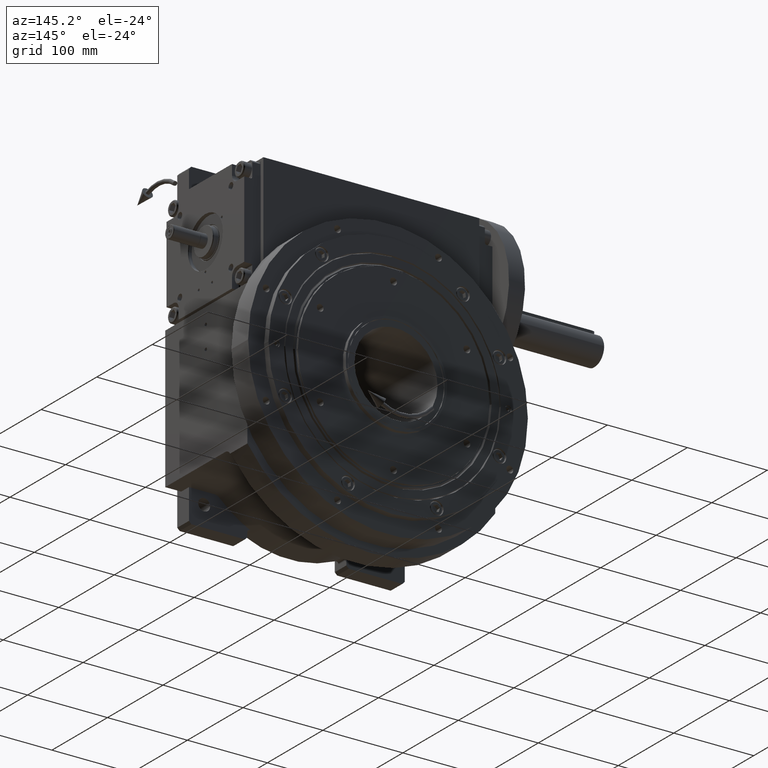
[diagram: clean part render]
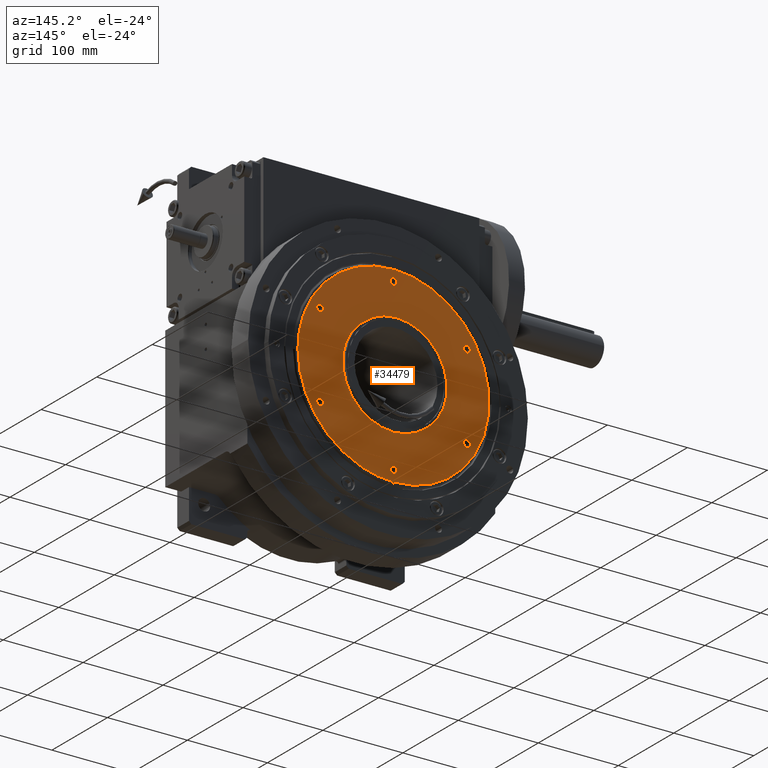
[diagram: same view with one face highlighted and labeled with its STEP entity id]
A machine part, auxiliary view. The second image highlights one B-rep face of the part: STEP entity #34479.
In plain terms, the highlighted planar face has unit normal (-0, -1, -0).
Its self-contained STEP definition (entity closure, byte-faithful):
#169 = CARTESIAN_POINT ( 'NONE',  ( 59.91550615225101950, 132.4999999999978968, -103.8049390302765858 ) ) ;
#350 = AXIS2_PLACEMENT_3D ( 'NONE', #35271, #22970, #34556 ) ;
#447 = B_SPLINE_CURVE_WITH_KNOTS ( 'NONE', 3,
 ( #26441, #48597, #32231, #59854, #4971, #70798, #26089, #37656, #43133, #15863, #27176, #60212, #65328, #15516, #54403, #4598, #26803, #9338, #48960, #32591, #48242, #71170, #70427, #43495, #65678, #38018, #10416, #49336, #42401, #14783, #15145, #54764, #71520, #43850, #20607, #66042, #42764, #21698, #64577, #14662, #19767, #63392, #30696, #41553, #3049, #41199, #36465, #64821 ),
 .UNSPECIFIED., .F., .F.,
 ( 4, 1, 1, 1, 2, 2, 2, 2, 2, 2, 2, 2, 2, 2, 2, 2, 2, 2, 2, 2, 2, 1, 1, 1, 2, 2, 4 ),
 ( 0.000000000000000000, 0.03124999999999977102, 0.04687499999999966693, 0.05468749999999961142, 0.05859374999999960448, 0.06249999999999959754, 0.09374999999999958367, 0.1249999999999995837, 0.1874999999999995559, 0.2499999999999995559, 0.3124999999999995559, 0.3749999999999995004, 0.4374999999999995004, 0.4999999999999995559, 0.5624999999999995559, 0.6249999999999995559, 0.6874999999999995559, 0.7499999999999995559, 0.8124999999999995559, 0.8437499999999996669, 0.8749999999999997780, 0.9062499999999998890, 0.9218749999999998890, 0.9296875000000000000, 0.9335937499999998890, 0.9374999999999998890, 1.000000000000000000 ),
 .UNSPECIFIED. ) ;
#569 = AXIS2_PLACEMENT_3D ( 'NONE', #25787, #35575, #42465 ) ;
#805 = VERTEX_POINT ( 'NONE', #39763 ) ;
#886 = ORIENTED_EDGE ( 'NONE', *, *, #30266, .T. ) ;
#943 = DIRECTION ( 'NONE',  ( 1.000000000000000000, 0.000000000000000000, 0.000000000000000000 ) ) ;
#3049 = CARTESIAN_POINT ( 'NONE',  ( 117.2049829753475905, 132.4999999999978684, 23.80735014851481424 ) ) ;
#3643 = FACE_BOUND ( 'NONE', #65547, .T. ) ;
#4004 = CARTESIAN_POINT ( 'NONE',  ( 2.434822665450165748E-14, 132.4999999999978968, -2.365041971707525628E-28 ) ) ;
#4069 = EDGE_CURVE ( 'NONE', #20922, #70827, #16515, .T. ) ;
#4193 = CARTESIAN_POINT ( 'NONE',  ( -38.51263040311844321, 132.4999999999978968, -113.4995549987769863 ) ) ;
#4598 = CARTESIAN_POINT ( 'NONE',  ( -90.12128647560763284, 132.4999999999979252, 79.01549921371366736 ) ) ;
#4926 = EDGE_LOOP ( 'NONE', ( #56709, #7550 ) ) ;
#4971 = CARTESIAN_POINT ( 'NONE',  ( -117.9267825953811979, 132.4999999999979252, 19.96307623908903750 ) ) ;
#5146 = EDGE_CURVE ( 'NONE', #19135, #29369, #64296, .T. ) ;
#5282 = CARTESIAN_POINT ( 'NONE',  ( -7.853206610606529026, 132.4999999999978968, -119.5980023859287087 ) ) ;
#5544 = EDGE_CURVE ( 'NONE', #27278, #805, #65766, .T. ) ;
#5627 = CARTESIAN_POINT ( 'NONE',  ( 79.01556773991651994, 132.4999999999978684, -90.12188140824113702 ) ) ;
#6256 = CIRCLE ( 'NONE', #28336, 63.49999999999945999 ) ;
#7206 = AXIS2_PLACEMENT_3D ( 'NONE', #48155, #20173, #37201 ) ;
#7259 = DIRECTION ( 'NONE',  ( 9.367723249499594012E-31, 1.000000000000000000, -1.879707625722509368E-30 ) ) ;
#7296 = EDGE_LOOP ( 'NONE', ( #71814, #41411 ) ) ;
#7550 = ORIENTED_EDGE ( 'NONE', *, *, #61004, .F. ) ;
#8254 = CIRCLE ( 'NONE', #38445, 4.249999999999961808 ) ;
#8643 = EDGE_CURVE ( 'NONE', #66032, #69282, #6256, .T. ) ;
#9080 = FACE_OUTER_BOUND ( 'NONE', #34158, .T. ) ;
#9219 = CARTESIAN_POINT ( 'NONE',  ( 57.24999999999921130, 132.4999999999978968, -91.79869280114944274 ) ) ;
#9338 = CARTESIAN_POINT ( 'NONE',  ( -72.97471123967686424, 132.4999999999978968, 95.07930562690665965 ) ) ;
#9368 = VERTEX_POINT ( 'NONE', #32492 ) ;
#9431 = ORIENTED_EDGE ( 'NONE', *, *, #63561, .T. ) ;
#9503 = CIRCLE ( 'NONE', #29317, 4.249999999999961808 ) ;
#9653 = CARTESIAN_POINT ( 'NONE',  ( -115.5835919734901012, 132.4999999999979252, -30.97810130117398941 ) ) ;
#10001 = CARTESIAN_POINT ( 'NONE',  ( -113.3149193024140402, 132.4999999999979252, -38.45822016484417816 ) ) ;
#10322 = ORIENTED_EDGE ( 'NONE', *, *, #71404, .F. ) ;
#10416 = CARTESIAN_POINT ( 'NONE',  ( 31.03403195677320880, 132.4999999999978684, 115.7682033528588192 ) ) ;
#10783 = AXIS2_PLACEMENT_3D ( 'NONE', #4004, #21458, #15250 ) ;
#11440 = CARTESIAN_POINT ( 'NONE',  ( 116.5896179971828275, 132.4999999999978684, -26.68677847494578614 ) ) ;
#11652 = CARTESIAN_POINT ( 'NONE',  ( 48.74999999999921130, 132.4999999999989484, 91.79869280114944274 ) ) ;
#11809 = CARTESIAN_POINT ( 'NONE',  ( 119.5931704195495939, 132.4999999999978684, -7.873779861737290275 ) ) ;
#12018 = DIRECTION ( 'NONE',  ( 1.000000000000000000, 0.000000000000000000, 0.000000000000000000 ) ) ;
#13178 = DIRECTION ( 'NONE',  ( 1.000000000000000000, 0.000000000000000000, 0.000000000000000000 ) ) ;
#13804 = ORIENTED_EDGE ( 'NONE', *, *, #17070, .F. ) ;
#14662 = CARTESIAN_POINT ( 'NONE',  ( 113.9740628083656873, 132.4999999999978684, 36.61660152332591167 ) ) ;
#14783 = CARTESIAN_POINT ( 'NONE',  ( 59.91608236990400371, 132.4999999999978968, 103.8044663400190757 ) ) ;
#15145 = CARTESIAN_POINT ( 'NONE',  ( 72.97465361904535541, 132.4999999999979252, 95.07943571753334311 ) ) ;
#15250 = DIRECTION ( 'NONE',  ( -1.000000000000000000, 1.836909530733552329E-16, 5.679798517591333204E-29 ) ) ;
#15309 = CARTESIAN_POINT ( 'NONE',  ( -48.74999999999973710, 132.4999999999989484, 91.79869280114944274 ) ) ;
#15408 = CARTESIAN_POINT ( 'NONE',  ( -110.2499999999989484, 132.4999999999978968, 3.871450606257303192E-15 ) ) ;
#15516 = CARTESIAN_POINT ( 'NONE',  ( -103.8047769619190603, 132.4999999999978968, 59.91610311598750371 ) ) ;
#15818 = CARTESIAN_POINT ( 'NONE',  ( -119.3066290682683643, 132.4999999999979252, -9.805815781586584734 ) ) ;
#15863 = CARTESIAN_POINT ( 'NONE',  ( -115.5837651079891231, 132.4999999999978968, 30.97752406750614895 ) ) ;
#16130 = EDGE_CURVE ( 'NONE', #20719, #59614, #64030, .T. ) ;
#16184 = CARTESIAN_POINT ( 'NONE',  ( -117.9268274798880327, 132.4999999999978968, -19.96321246641599956 ) ) ;
#16260 = CARTESIAN_POINT ( 'NONE',  ( -4.611821888984087218E-10, 132.4999999999965610, -119.5980143915149938 ) ) ;
#16515 = CIRCLE ( 'NONE', #32754, 4.249999999999961808 ) ;
#17070 = EDGE_CURVE ( 'NONE', #32320, #69373, #22408, .T. ) ;
#17309 = CARTESIAN_POINT ( 'NONE',  ( 52.99999999999920419, 132.4999999999989484, 91.79869280114944274 ) ) ;
#17386 = DIRECTION ( 'NONE',  ( -1.000000000000000000, 0.000000000000000000, 0.000000000000000000 ) ) ;
#17611 = CARTESIAN_POINT ( 'NONE',  ( 111.9967488491349172, 132.4999999999978400, -42.14107272694558759 ) ) ;
#17970 = CARTESIAN_POINT ( 'NONE',  ( 115.7983430623779526, 132.4999999999979252, -30.02127105599840817 ) ) ;
#18758 = CARTESIAN_POINT ( 'NONE',  ( -119.5980721650019376, 132.4999989161603082, -1.767335048674100720E-07 ) ) ;
#19135 = VERTEX_POINT ( 'NONE', #9219 ) ;
#19167 = CARTESIAN_POINT ( 'NONE',  ( 2.842170943040403268E-14, 132.4999999999978968, -2.357338251929976684E-28 ) ) ;
#19515 = B_SPLINE_CURVE_WITH_KNOTS ( 'NONE', 3,
 ( #22372, #11809, #61231, #27819, #44531, #51411, #11440, #17970, #40108, #17611, #39395, #45948, #34673, #23799, #56161, #66708, #5627, #56865, #169, #34322, #44883, #49980, #68134, #39030, #33605 ),
 .UNSPECIFIED., .F., .F.,
 ( 4, 2, 2, 1, 1, 1, 2, 2, 2, 2, 2, 2, 2, 4 ),
 ( 0.000000000000000000, 0.06249999705023520646, 0.06640624686587490166, 0.07031249668151458299, 0.07812499631279400114, 0.09374999557535286521, 0.1249999941004705240, 0.1562499926255881688, 0.1874999911507058137, 0.2499999882009411034, 0.3124999852511763376, 0.3749999823014115163, 0.4374999793516468061, 0.4999999764018819848 ),
 .UNSPECIFIED. ) ;
#19767 = CARTESIAN_POINT ( 'NONE',  ( 115.7981953049884822, 132.4999999999978400, 30.02177549642351551 ) ) ;
#19865 = CARTESIAN_POINT ( 'NONE',  ( -105.9999999999989484, 132.4999999999978968, -1.340062055304638707E-26 ) ) ;
#20029 = CARTESIAN_POINT ( 'NONE',  ( 105.9999999999989484, 132.4999999999989484, 1.499837203491003793E-26 ) ) ;
#20173 = DIRECTION ( 'NONE',  ( 9.367723249499594012E-31, 1.000000000000000000, -1.879707625722509368E-30 ) ) ;
#20336 = DIRECTION ( 'NONE',  ( 9.367723249499594012E-31, 1.000000000000000000, -1.879707625722509368E-30 ) ) ;
#20364 = FACE_BOUND ( 'NONE', #29624, .T. ) ;
#20560 = CARTESIAN_POINT ( 'NONE',  ( -15.62997630948720662, 132.4999999999978684, -118.8320161994700612 ) ) ;
#20607 = CARTESIAN_POINT ( 'NONE',  ( 101.6233064208454948, 132.4999999999978400, 63.18088954161913051 ) ) ;
#20719 = VERTEX_POINT ( 'NONE', #21334 ) ;
#20922 = VERTEX_POINT ( 'NONE', #69883 ) ;
#21223 = ORIENTED_EDGE ( 'NONE', *, *, #32151, .F. ) ;
#21334 = CARTESIAN_POINT ( 'NONE',  ( -101.7499999999989342, 132.4999999999978968, 4.327085356974898997E-15 ) ) ;
#21458 = DIRECTION ( 'NONE',  ( -1.836909530733552329E-16, -1.000000000000000000, 1.880467465270781052E-30 ) ) ;
#21698 = CARTESIAN_POINT ( 'NONE',  ( 108.9921631677102596, 132.4999999999978115, 49.39426878967106660 ) ) ;
#21909 = AXIS2_PLACEMENT_3D ( 'NONE', #32752, #60378, #33831 ) ;
#22021 = CARTESIAN_POINT ( 'NONE',  ( -117.4883090029722723, 132.4999999999978968, -22.36743131779856597 ) ) ;
#22372 = CARTESIAN_POINT ( 'NONE',  ( 119.5980721650007297, 132.4999989161609335, 1.767335070585145824E-07 ) ) ;
#22408 = CIRCLE ( 'NONE', #28166, 4.249999999999961808 ) ;
#22847 = CARTESIAN_POINT ( 'NONE',  ( -52.99999999999973710, 132.4999999999978968, -91.79869280114944274 ) ) ;
#22970 = DIRECTION ( 'NONE',  ( 9.367723249499594012E-31, 1.000000000000000000, -1.879707625722509368E-30 ) ) ;
#23329 = VERTEX_POINT ( 'NONE', #16260 ) ;
#23503 = VERTEX_POINT ( 'NONE', #18758 ) ;
#23799 = CARTESIAN_POINT ( 'NONE',  ( 101.6234431269164276, 132.4999999999978400, -63.18064476751921177 ) ) ;
#25145 = CARTESIAN_POINT ( 'NONE',  ( -52.99999999999973710, 132.4999999999989484, 91.79869280114944274 ) ) ;
#25787 = CARTESIAN_POINT ( 'NONE',  ( 52.99999999999920419, 132.4999999999978968, -91.79869280114944274 ) ) ;
#25804 = DIRECTION ( 'NONE',  ( 1.000000000000000000, 0.000000000000000000, -2.089831575765579837E-16 ) ) ;
#25808 = CIRCLE ( 'NONE', #7206, 4.249999999999961808 ) ;
#26044 = CARTESIAN_POINT ( 'NONE',  ( -116.5339786852160415, 132.4999999999978684, -27.18121637581603878 ) ) ;
#26089 = CARTESIAN_POINT ( 'NONE',  ( -117.4882742468200405, 132.4999999999979536, 22.36739173054816376 ) ) ;
#26441 = CARTESIAN_POINT ( 'NONE',  ( -119.5980721650019376, 132.4999989161603082, -1.767335048674100720E-07 ) ) ;
#26803 = CARTESIAN_POINT ( 'NONE',  ( -79.01636042424574669, 132.4999999999979252, 90.12108826776905346 ) ) ;
#27127 = CARTESIAN_POINT ( 'NONE',  ( -31.03506768611052991, 132.4999999999978968, -115.7679978658135269 ) ) ;
#27176 = CARTESIAN_POINT ( 'NONE',  ( -113.3150975266473495, 132.4999999999979252, 38.45764492338781793 ) ) ;
#27215 = ORIENTED_EDGE ( 'NONE', *, *, #16130, .F. ) ;
#27278 = VERTEX_POINT ( 'NONE', #59920 ) ;
#27280 = PLANE ( 'NONE',  #10783 ) ;
#27819 = CARTESIAN_POINT ( 'NONE',  ( 117.2049556399952195, 132.4999999999978968, -23.80737829942683348 ) ) ;
#28166 = AXIS2_PLACEMENT_3D ( 'NONE', #17309, #61643, #943 ) ;
#28336 = AXIS2_PLACEMENT_3D ( 'NONE', #19167, #40961, #62438 ) ;
#29149 = VERTEX_POINT ( 'NONE', #55127 ) ;
#29317 = AXIS2_PLACEMENT_3D ( 'NONE', #19865, #30432, #52602 ) ;
#29369 = VERTEX_POINT ( 'NONE', #34728 ) ;
#29560 = DIRECTION ( 'NONE',  ( 9.367723249499594012E-31, 1.000000000000000000, -1.879707625722509368E-30 ) ) ;
#29624 = EDGE_LOOP ( 'NONE', ( #53736, #65469 ) ) ;
#30266 = EDGE_CURVE ( 'NONE', #23503, #29149, #447, .T. ) ;
#30432 = DIRECTION ( 'NONE',  ( 9.367723249499594012E-31, 1.000000000000000000, -1.879707625722509368E-30 ) ) ;
#30696 = CARTESIAN_POINT ( 'NONE',  ( 116.9028264187403465, 132.4999999999978400, 25.24992049803791261 ) ) ;
#31082 = EDGE_LOOP ( 'NONE', ( #21223, #43254 ) ) ;
#31084 = EDGE_LOOP ( 'NONE', ( #10322, #27215 ) ) ;
#31474 = CARTESIAN_POINT ( 'NONE',  ( -90.12186494360375377, 132.4999999999979536, -79.01502765612139001 ) ) ;
#31788 = CARTESIAN_POINT ( 'NONE',  ( 57.24999999999921130, 132.4999999999989484, 91.79869280114944274 ) ) ;
#31835 = CARTESIAN_POINT ( 'NONE',  ( -117.6672837760912245, 132.4999999999979252, -21.40620460743104658 ) ) ;
#32151 = EDGE_CURVE ( 'NONE', #805, #27278, #25808, .T. ) ;
#32231 = CARTESIAN_POINT ( 'NONE',  ( -119.3065723542985950, 132.4999999999979252, 9.805496582594443566 ) ) ;
#32320 = VERTEX_POINT ( 'NONE', #31788 ) ;
#32343 = FACE_BOUND ( 'NONE', #7296, .T. ) ;
#32492 = CARTESIAN_POINT ( 'NONE',  ( -57.24999999999973710, 132.4999999999989484, 91.79869280114891694 ) ) ;
#32544 = CARTESIAN_POINT ( 'NONE',  ( -103.8052560302931653, 132.4999999999979536, -59.91548717174243421 ) ) ;
#32591 = CARTESIAN_POINT ( 'NONE',  ( -53.02334008144059396, 132.4999999999979252, 107.4887763947920831 ) ) ;
#32716 = CARTESIAN_POINT ( 'NONE',  ( 63.49999999999894840, 132.4999999999989484, 7.776507174602121769E-15 ) ) ;
#32752 = CARTESIAN_POINT ( 'NONE',  ( 2.486899575160234530E-14, 132.4999999999978968, -3.552713678800957680E-15 ) ) ;
#32754 = AXIS2_PLACEMENT_3D ( 'NONE', #62152, #7259, #12018 ) ;
#32831 = CIRCLE ( 'NONE', #36278, 4.249999999999961808 ) ;
#33605 = CARTESIAN_POINT ( 'NONE',  ( -4.611821888984087218E-10, 132.4999999999965610, -119.5980143915149938 ) ) ;
#33831 = DIRECTION ( 'NONE',  ( 1.000000000000000000, 0.000000000000000000, 1.784129268249238637E-16 ) ) ;
#34158 = EDGE_LOOP ( 'NONE', ( #886, #9431, #61466 ) ) ;
#34184 = CARTESIAN_POINT ( 'NONE',  ( 52.99999999999920419, 132.4999999999989484, 91.79869280114944274 ) ) ;
#34322 = CARTESIAN_POINT ( 'NONE',  ( 53.02365767366418936, 132.4999999999979252, -107.4886443672447882 ) ) ;
#34479 = ADVANCED_FACE ( 'NONE', ( #9080, #3643, #20364, #64692, #59609, #48345, #65060, #32343 ), #27280, .F. ) ;
#34556 = DIRECTION ( 'NONE',  ( 1.000000000000000000, 0.000000000000000000, 0.000000000000000000 ) ) ;
#34673 = CARTESIAN_POINT ( 'NONE',  ( 103.6349907654712297, 132.4999999999978684, -59.82547691372212029 ) ) ;
#34728 = CARTESIAN_POINT ( 'NONE',  ( 48.74999999999921130, 132.4999999999978968, -91.79869280114944274 ) ) ;
#35271 = CARTESIAN_POINT ( 'NONE',  ( -52.99999999999973710, 132.4999999999989484, 91.79869280114944274 ) ) ;
#35575 = DIRECTION ( 'NONE',  ( 9.367723249499594012E-31, 1.000000000000000000, -1.879707625722509368E-30 ) ) ;
#36278 = AXIS2_PLACEMENT_3D ( 'NONE', #25145, #36379, #49398 ) ;
#36379 = DIRECTION ( 'NONE',  ( 9.367723249499594012E-31, 1.000000000000000000, -1.879707625722509368E-30 ) ) ;
#36465 = CARTESIAN_POINT ( 'NONE',  ( 119.5932309676829277, 132.4999999999979252, 7.874145384623176369 ) ) ;
#36664 = EDGE_CURVE ( 'NONE', #29369, #19135, #63240, .T. ) ;
#37201 = DIRECTION ( 'NONE',  ( -1.000000000000000000, 0.000000000000000000, 5.679798517591353382E-29 ) ) ;
#37481 = ORIENTED_EDGE ( 'NONE', *, *, #70698, .F. ) ;
#37656 = CARTESIAN_POINT ( 'NONE',  ( -117.3961737238033578, 132.4999999999978968, 22.84584581231716172 ) ) ;
#38018 = CARTESIAN_POINT ( 'NONE',  ( 15.63102730713274191, 132.4999999999978968, 118.8318076756115715 ) ) ;
#38445 = AXIS2_PLACEMENT_3D ( 'NONE', #34184, #67998, #62868 ) ;
#38704 = CARTESIAN_POINT ( 'NONE',  ( -53.02404700054827202, 132.4999999999979252, -107.4885573465629989 ) ) ;
#39030 = CARTESIAN_POINT ( 'NONE',  ( 7.853205868400651823, 132.4999999999978968, -119.5979287780244249 ) ) ;
#39395 = CARTESIAN_POINT ( 'NONE',  ( 108.9920191628601316, 132.4999999999978400, -49.39467039274823890 ) ) ;
#39643 = AXIS2_PLACEMENT_3D ( 'NONE', #22847, #45010, #17386 ) ;
#39763 = CARTESIAN_POINT ( 'NONE',  ( 101.7499999999989342, 132.4999999999989484, -4.556347507246854958E-16 ) ) ;
#40108 = CARTESIAN_POINT ( 'NONE',  ( 113.9742727452571245, 132.4999999999978968, -36.61592840167413243 ) ) ;
#40760 = CARTESIAN_POINT ( 'NONE',  ( 52.99999999999920419, 132.4999999999978968, -91.79869280114944274 ) ) ;
#40961 = DIRECTION ( 'NONE',  ( -9.367723249499594012E-31, -1.000000000000000000, 1.879707625722509368E-30 ) ) ;
#41031 = AXIS2_PLACEMENT_3D ( 'NONE', #40760, #29560, #13178 ) ;
#41199 = CARTESIAN_POINT ( 'NONE',  ( 118.8273442272879947, 132.4999999999978968, 15.64998033984043424 ) ) ;
#41411 = ORIENTED_EDGE ( 'NONE', *, *, #8643, .T. ) ;
#41553 = CARTESIAN_POINT ( 'NONE',  ( 117.1059325233572821, 132.4999999999979252, 24.29004452921802226 ) ) ;
#42179 = DIRECTION ( 'NONE',  ( 1.000000000000000000, 0.000000000000000000, -5.679798517591353382E-29 ) ) ;
#42401 = CARTESIAN_POINT ( 'NONE',  ( 53.02302079414817371, 132.4999999999978684, 107.4889819579593819 ) ) ;
#42465 = DIRECTION ( 'NONE',  ( -1.000000000000000000, 0.000000000000000000, 0.000000000000000000 ) ) ;
#42716 = CARTESIAN_POINT ( 'NONE',  ( -111.9974582114266184, 132.4999999999979536, -42.13946286412982545 ) ) ;
#42764 = CARTESIAN_POINT ( 'NONE',  ( 107.3188041511699282, 132.4999999999978684, 52.93353850332937327 ) ) ;
#43133 = CARTESIAN_POINT ( 'NONE',  ( -116.5340833019334497, 132.4999999999978968, 27.18083291777615784 ) ) ;
#43254 = ORIENTED_EDGE ( 'NONE', *, *, #5544, .F. ) ;
#43495 = CARTESIAN_POINT ( 'NONE',  ( -7.852459653626882918, 132.4999999999978968, 119.5979293600647253 ) ) ;
#43685 = ORIENTED_EDGE ( 'NONE', *, *, #36664, .F. ) ;
#43691 = AXIS2_PLACEMENT_3D ( 'NONE', #20029, #58898, #42179 ) ;
#43850 = CARTESIAN_POINT ( 'NONE',  ( 95.08043956231274763, 132.4999999999978968, 72.97263514760311409 ) ) ;
#44169 = CARTESIAN_POINT ( 'NONE',  ( -119.5956535894029145, 132.4999999999979536, -3.937072878570720302 ) ) ;
#44531 = CARTESIAN_POINT ( 'NONE',  ( 117.1059352409996706, 132.4999999999978684, -24.28995552563080196 ) ) ;
#44883 = CARTESIAN_POINT ( 'NONE',  ( 38.51301285578394840, 132.4999999999978968, -113.4994728716397674 ) ) ;
#45010 = DIRECTION ( 'NONE',  ( 9.367723249499594012E-31, 1.000000000000000000, -1.879707625722509368E-30 ) ) ;
#45948 = CARTESIAN_POINT ( 'NONE',  ( 107.3190010959013279, 132.4999999999978400, -52.93316008057188782 ) ) ;
#48155 = CARTESIAN_POINT ( 'NONE',  ( 105.9999999999989484, 132.4999999999989484, 1.499837203491003793E-26 ) ) ;
#48200 = CARTESIAN_POINT ( 'NONE',  ( -119.5980721650019376, 132.4999989161603082, -1.767335048674100720E-07 ) ) ;
#48242 = CARTESIAN_POINT ( 'NONE',  ( -38.51331812074597849, 132.4999999999979252, 113.4993459504850506 ) ) ;
#48345 = FACE_BOUND ( 'NONE', #50331, .T. ) ;
#48597 = CARTESIAN_POINT ( 'NONE',  ( -119.5956233153358994, 132.4999999999978684, 3.936890115321318717 ) ) ;
#48960 = CARTESIAN_POINT ( 'NONE',  ( -59.91599307755178216, 132.4999999999978968, 103.8046132516826106 ) ) ;
#49336 = CARTESIAN_POINT ( 'NONE',  ( 38.51366893743429642, 132.4999999999978968, 113.4991252808440976 ) ) ;
#49398 = DIRECTION ( 'NONE',  ( -1.000000000000000000, 0.000000000000000000, 0.000000000000000000 ) ) ;
#49639 = CARTESIAN_POINT ( 'NONE',  ( -4.611821888984087218E-10, 132.4999999999965610, -119.5980143915149938 ) ) ;
#49980 = CARTESIAN_POINT ( 'NONE',  ( 31.03471967219259042, 132.4999999999978968, -115.7679930633748171 ) ) ;
#50331 = EDGE_LOOP ( 'NONE', ( #37481, #13804 ) ) ;
#51411 = CARTESIAN_POINT ( 'NONE',  ( 116.9028586355802588, 132.4999999999978684, -25.24974653130579583 ) ) ;
#52602 = DIRECTION ( 'NONE',  ( -1.000000000000000000, 0.000000000000000000, 5.679798517591353382E-29 ) ) ;
#53653 = CARTESIAN_POINT ( 'NONE',  ( -107.4882768554504224, 132.4999999999979252, -53.02466191896092340 ) ) ;
#53736 = ORIENTED_EDGE ( 'NONE', *, *, #71290, .F. ) ;
#54403 = CARTESIAN_POINT ( 'NONE',  ( -95.07992536231142822, 132.4999999999979252, 72.97354654713701905 ) ) ;
#54640 = EDGE_CURVE ( 'NONE', #66032, #69282, #55586, .T. ) ;
#54764 = CARTESIAN_POINT ( 'NONE',  ( 79.01607143645807696, 132.4999999999978968, 90.12128658531992187 ) ) ;
#55127 = CARTESIAN_POINT ( 'NONE',  ( 119.5980721650007297, 132.4999989161609335, 1.767335070585145824E-07 ) ) ;
#55586 = CIRCLE ( 'NONE', #21909, 63.49999999999945999 ) ;
#55783 = B_SPLINE_CURVE_WITH_KNOTS ( 'NONE', 3,
 ( #49639, #5282, #20560, #27127, #4193, #38704, #71471, #65637, #59442, #31474, #71837, #32544, #53653, #42716, #10001, #9653, #26044, #64904, #22021, #31835, #16184, #60162, #15818, #44169, #48200 ),
 .UNSPECIFIED., .F., .F.,
 ( 4, 2, 2, 2, 2, 2, 2, 2, 2, 2, 1, 1, 1, 4 ),
 ( 0.4999999764018819848, 0.5624999793516467506, 0.6249999823014115163, 0.6874999852511762821, 0.7499999882009410479, 0.8124999911507058137, 0.8749999941004704684, 0.9062499955753529068, 0.9374999970502351232, 0.9414062472345955390, 0.9453124974189558438, 0.9531249977876764534, 0.9687499985251175616, 1.000000000000000000 ),
 .UNSPECIFIED. ) ;
#56161 = CARTESIAN_POINT ( 'NONE',  ( 95.08017279123258447, 132.4999999999978968, -72.97317664057648301 ) ) ;
#56709 = ORIENTED_EDGE ( 'NONE', *, *, #58770, .F. ) ;
#56865 = CARTESIAN_POINT ( 'NONE',  ( 72.97520741050944082, 132.4999999999978968, -95.07897367082176743 ) ) ;
#57102 = CIRCLE ( 'NONE', #39643, 4.249999999999961808 ) ;
#58411 = CIRCLE ( 'NONE', #350, 4.249999999999961808 ) ;
#58770 = EDGE_CURVE ( 'NONE', #9368, #60125, #32831, .T. ) ;
#58898 = DIRECTION ( 'NONE',  ( 9.367723249499594012E-31, 1.000000000000000000, -1.879707625722509368E-30 ) ) ;
#59204 = CARTESIAN_POINT ( 'NONE',  ( -105.9999999999989484, 132.4999999999978968, 8.881784196870212666E-16 ) ) ;
#59442 = CARTESIAN_POINT ( 'NONE',  ( -79.01580708204802761, 132.4999999999979252, -90.12155054181296521 ) ) ;
#59609 = FACE_BOUND ( 'NONE', #4926, .T. ) ;
#59614 = VERTEX_POINT ( 'NONE', #15408 ) ;
#59854 = CARTESIAN_POINT ( 'NONE',  ( -118.4699459033157467, 132.4999999999979252, 16.58792889275591165 ) ) ;
#59920 = CARTESIAN_POINT ( 'NONE',  ( 110.2499999999989484, 132.4999999999989484, -7.878594216499304428E-27 ) ) ;
#60125 = VERTEX_POINT ( 'NONE', #15309 ) ;
#60162 = CARTESIAN_POINT ( 'NONE',  ( -118.4700002642429411, 132.4999999999978968, -16.58816627580123182 ) ) ;
#60212 = CARTESIAN_POINT ( 'NONE',  ( -111.9973035085234301, 132.4999999999979252, 42.13973393487572139 ) ) ;
#60378 = DIRECTION ( 'NONE',  ( 9.367723249499594012E-31, 1.000000000000000000, -1.879707625722509368E-30 ) ) ;
#61004 = EDGE_CURVE ( 'NONE', #60125, #9368, #58411, .T. ) ;
#61231 = CARTESIAN_POINT ( 'NONE',  ( 118.8272737208792904, 132.4999999999978684, -15.64961651478862237 ) ) ;
#61466 = ORIENTED_EDGE ( 'NONE', *, *, #66894, .T. ) ;
#61643 = DIRECTION ( 'NONE',  ( 9.367723249499594012E-31, 1.000000000000000000, -1.879707625722509368E-30 ) ) ;
#62152 = CARTESIAN_POINT ( 'NONE',  ( -52.99999999999973710, 132.4999999999978968, -91.79869280114944274 ) ) ;
#62438 = DIRECTION ( 'NONE',  ( 1.000000000000000000, 0.000000000000000000, 1.224646799146793855E-16 ) ) ;
#62868 = DIRECTION ( 'NONE',  ( -1.000000000000000000, 0.000000000000000000, 0.000000000000000000 ) ) ;
#63240 = CIRCLE ( 'NONE', #569, 4.249999999999961808 ) ;
#63392 = CARTESIAN_POINT ( 'NONE',  ( 116.5895446240084965, 132.4999999999978968, 26.68707075652127614 ) ) ;
#63561 = EDGE_CURVE ( 'NONE', #29149, #23329, #19515, .T. ) ;
#64030 = CIRCLE ( 'NONE', #66395, 4.249999999999961808 ) ;
#64296 = CIRCLE ( 'NONE', #41031, 4.249999999999961808 ) ;
#64577 = CARTESIAN_POINT ( 'NONE',  ( 111.9966340536899310, 132.4999999999978968, 42.14145219855278413 ) ) ;
#64692 = FACE_BOUND ( 'NONE', #31084, .T. ) ;
#64821 = CARTESIAN_POINT ( 'NONE',  ( 119.5980721650007297, 132.4999989161609335, 1.767335070585145824E-07 ) ) ;
#64904 = CARTESIAN_POINT ( 'NONE',  ( -117.3962204091191381, 132.4999999999978684, -22.84579215457516810 ) ) ;
#65060 = FACE_BOUND ( 'NONE', #31082, .T. ) ;
#65328 = CARTESIAN_POINT ( 'NONE',  ( -107.4885424483306338, 132.4999999999978968, 53.02415297195462074 ) ) ;
#65469 = ORIENTED_EDGE ( 'NONE', *, *, #4069, .F. ) ;
#65547 = EDGE_LOOP ( 'NONE', ( #43685, #70188 ) ) ;
#65637 = CARTESIAN_POINT ( 'NONE',  ( -72.97537000808965502, 132.4999999999978684, -95.07895749997040014 ) ) ;
#65678 = CARTESIAN_POINT ( 'NONE',  ( 7.852477445354657526, 132.4999999999978968, 119.5980018039676622 ) ) ;
#65766 = CIRCLE ( 'NONE', #43691, 4.249999999999961808 ) ;
#66032 = VERTEX_POINT ( 'NONE', #32716 ) ;
#66042 = CARTESIAN_POINT ( 'NONE',  ( 103.6347882147147175, 132.4999999999978400, 59.82585325316333780 ) ) ;
#66395 = AXIS2_PLACEMENT_3D ( 'NONE', #59204, #20336, #25804 ) ;
#66554 = CARTESIAN_POINT ( 'NONE',  ( -63.49999999999894840, 132.4999999999978968, -1.036867623279123698E-14 ) ) ;
#66708 = CARTESIAN_POINT ( 'NONE',  ( 90.12208545016737560, 132.4999999999978684, -79.01469978263540384 ) ) ;
#66894 = EDGE_CURVE ( 'NONE', #23329, #23503, #55783, .T. ) ;
#67998 = DIRECTION ( 'NONE',  ( 9.367723249499594012E-31, 1.000000000000000000, -1.879707625722509368E-30 ) ) ;
#68134 = CARTESIAN_POINT ( 'NONE',  ( 15.63032036881470788, 132.4999999999979536, -118.8320205202977462 ) ) ;
#68698 = CARTESIAN_POINT ( 'NONE',  ( -57.24999999999973710, 132.4999999999978968, -91.79869280114996855 ) ) ;
#69282 = VERTEX_POINT ( 'NONE', #66554 ) ;
#69373 = VERTEX_POINT ( 'NONE', #11652 ) ;
#69883 = CARTESIAN_POINT ( 'NONE',  ( -48.74999999999973710, 132.4999999999978968, -91.79869280114944274 ) ) ;
#70188 = ORIENTED_EDGE ( 'NONE', *, *, #5146, .F. ) ;
#70427 = CARTESIAN_POINT ( 'NONE',  ( -15.63070449362146874, 132.4999999999978968, 118.8319435994051503 ) ) ;
#70698 = EDGE_CURVE ( 'NONE', #69373, #32320, #8254, .T. ) ;
#70798 = CARTESIAN_POINT ( 'NONE',  ( -117.6672447314571599, 132.4999999999979252, 21.40612464278587268 ) ) ;
#70827 = VERTEX_POINT ( 'NONE', #68698 ) ;
#71170 = CARTESIAN_POINT ( 'NONE',  ( -31.03432027976190355, 132.4999999999978968, 115.7680730210888811 ) ) ;
#71290 = EDGE_CURVE ( 'NONE', #70827, #20922, #57102, .T. ) ;
#71404 = EDGE_CURVE ( 'NONE', #59614, #20719, #9503, .T. ) ;
#71471 = CARTESIAN_POINT ( 'NONE',  ( -59.91535673510813353, 132.4999999999978968, -103.8049507350925040 ) ) ;
#71520 = CARTESIAN_POINT ( 'NONE',  ( 90.12160687916291124, 132.4999999999978684, 79.01528532238182834 ) ) ;
#71814 = ORIENTED_EDGE ( 'NONE', *, *, #54640, .F. ) ;
#71837 = CARTESIAN_POINT ( 'NONE',  ( -95.07944186594609448, 132.4999999999979821, -72.97412786235297233 ) ) ;